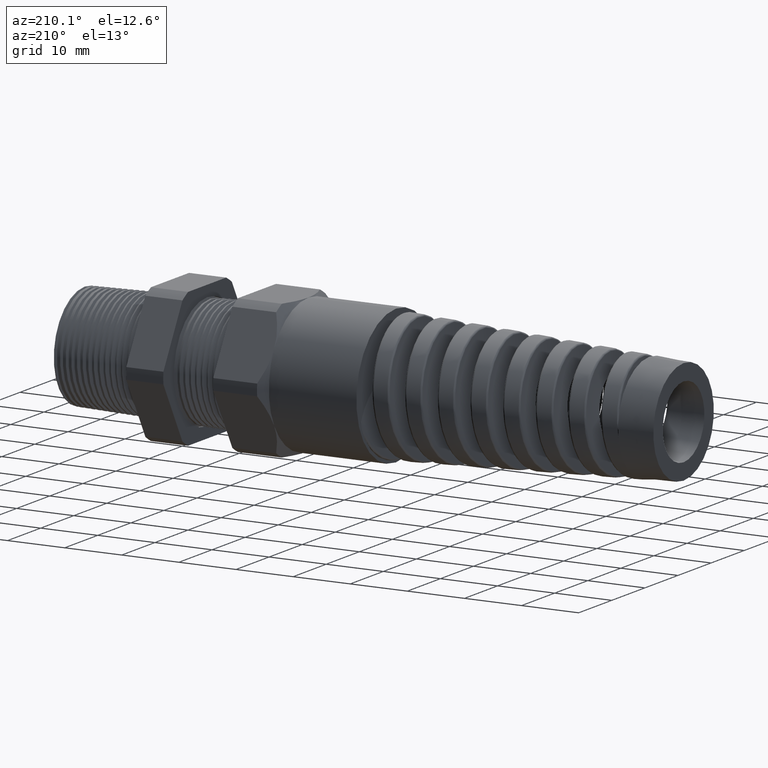
[diagram: clean part render]
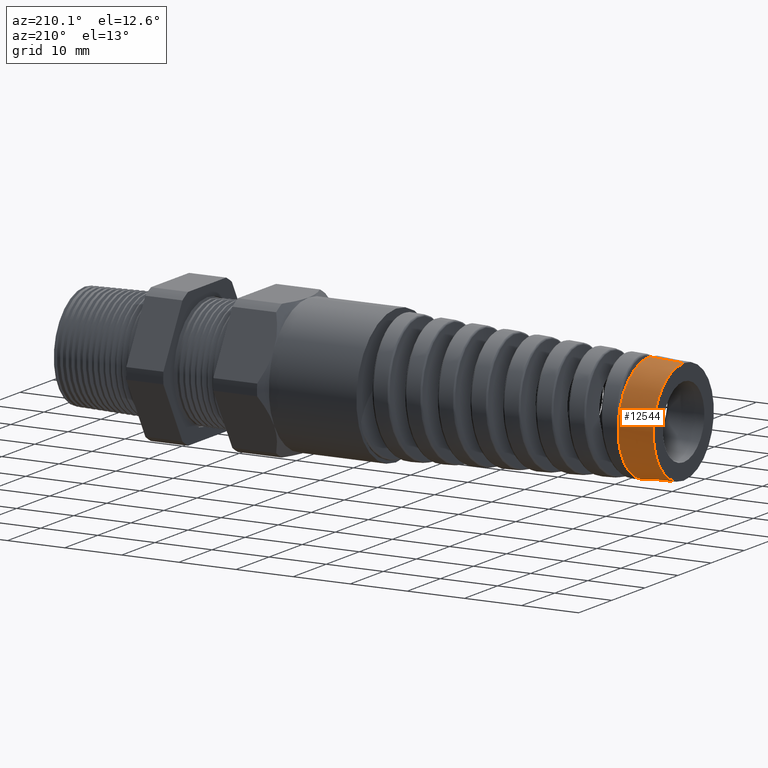
[diagram: same view with one face highlighted and labeled with its STEP entity id]
A machine part, auxiliary view. The second image highlights one B-rep face of the part: STEP entity #12544.
In plain terms, the highlighted conical surface has half-angle 3 deg.
Its self-contained STEP definition (entity closure, byte-faithful):
#402 = DIRECTION ( 'NONE',  ( 0.0000000000000000000, 0.0000000000000000000, -1.000000000000000000 ) ) ;
#404 = DIRECTION ( 'NONE',  ( 1.000000000000000000, 0.0000000000000000000, 0.0000000000000000000 ) ) ;
#406 = CARTESIAN_POINT ( 'NONE',  ( -3.613780000000000200, 0.0000000000000000000, 0.0000000000000000000 ) ) ;
#408 = AXIS2_PLACEMENT_3D ( 'NONE', #406, #404, #402 ) ;
#410 = CIRCLE ( 'NONE', #408, 0.3720344495207378300 ) ;
#556 = CARTESIAN_POINT ( 'NONE',  ( -3.613780000000000200, 0.3677111361746269700, -0.05655220564543374900 ) ) ;
#891 = CARTESIAN_POINT ( 'NONE',  ( -3.613780000000000200, -4.556107977781115500E-017, -0.3720344495207316100 ) ) ;
#5456 = DIRECTION ( 'NONE',  ( 0.9986295347545738300, 0.0000000000000000000, 0.05233595624294395300 ) ) ;
#5457 = VECTOR ( 'NONE', #5456, 39.37007874015748900 ) ;
#5458 = CARTESIAN_POINT ( 'NONE',  ( -3.613780000000000200, 0.0000000000000000000, 0.3720344495207316100 ) ) ;
#5459 = LINE ( 'NONE', #5458, #5457 ) ;
#5460 = CARTESIAN_POINT ( 'NONE',  ( -3.613780000000000200, 0.0000000000000000000, 0.3720344495207316100 ) ) ;
#5548 = DIRECTION ( 'NONE',  ( 0.9986295347545738300, -6.409306129323724800E-018, -0.05233595624294395300 ) ) ;
#5549 = VECTOR ( 'NONE', #5548, 39.37007874015748900 ) ;
#5550 = CARTESIAN_POINT ( 'NONE',  ( -3.613780000000000200, -4.556107977781115500E-017, -0.3720344495207316100 ) ) ;
#5551 = LINE ( 'NONE', #5550, #5549 ) ;
#5552 = CARTESIAN_POINT ( 'NONE',  ( -3.850000472440945600, 0.0000000000000000000, 0.3596546591389108700 ) ) ;
#5553 = CARTESIAN_POINT ( 'NONE',  ( -3.850000472440945600, -4.480303624455055900E-017, -0.3596546591389108700 ) ) ;
#6191 = EDGE_CURVE ( 'NONE', #6283, #6218, #410, .T. ) ;
#6218 = VERTEX_POINT ( 'NONE', #556 ) ;
#6283 = VERTEX_POINT ( 'NONE', #891 ) ;
#6721 = DIRECTION ( 'NONE',  ( 0.0000000000000000000, 0.0000000000000000000, 1.000000000000000000 ) ) ;
#6722 = DIRECTION ( 'NONE',  ( -1.000000000000000000, 0.0000000000000000000, 0.0000000000000000000 ) ) ;
#6723 = AXIS2_PLACEMENT_3D ( 'NONE', #6729, #6722, #6721 ) ;
#6724 = CIRCLE ( 'NONE', #6723, 0.3720344495207316100 ) ;
#6729 = CARTESIAN_POINT ( 'NONE',  ( -3.613780000000000200, 0.0000000000000000000, 0.0000000000000000000 ) ) ;
#7225 = DIRECTION ( 'NONE',  ( 0.0000000000000000000, 0.0000000000000000000, 1.000000000000000000 ) ) ;
#7226 = DIRECTION ( 'NONE',  ( -1.000000000000000000, 0.0000000000000000000, 0.0000000000000000000 ) ) ;
#7227 = CARTESIAN_POINT ( 'NONE',  ( -3.850000472440945600, 0.0000000000000000000, 0.0000000000000000000 ) ) ;
#7228 = AXIS2_PLACEMENT_3D ( 'NONE', #7227, #7226, #7225 ) ;
#7229 = CIRCLE ( 'NONE', #7228, 0.3596546591389108700 ) ;
#7247 = DIRECTION ( 'NONE',  ( 0.0000000000000000000, 0.0000000000000000000, 1.000000000000000000 ) ) ;
#7248 = DIRECTION ( 'NONE',  ( 1.000000000000000000, 0.0000000000000000000, 0.0000000000000000000 ) ) ;
#7249 = CARTESIAN_POINT ( 'NONE',  ( -3.613780000000000200, 0.0000000000000000000, 0.0000000000000000000 ) ) ;
#7250 = AXIS2_PLACEMENT_3D ( 'NONE', #7249, #7248, #7247 ) ;
#7252 = CONICAL_SURFACE ( 'NONE', #7250, 0.3720344495207316100, 0.05235987755983000100 ) ;
#7253 = FACE_OUTER_BOUND ( 'NONE', #12546, .T. ) ;
#12504 = ORIENTED_EDGE ( 'NONE', *, *, #14198, .T. ) ;
#12506 = ORIENTED_EDGE ( 'NONE', *, *, #12507, .T. ) ;
#12507 = EDGE_CURVE ( 'NONE', #14196, #6218, #6724, .T. ) ;
#12509 = ORIENTED_EDGE ( 'NONE', *, *, #6191, .F. ) ;
#12544 = ADVANCED_FACE ( 'NONE', ( #7253 ), #7252, .T. ) ;
#12546 = EDGE_LOOP ( 'NONE', ( #12548, #12550, #12504, #12506, #12509 ) ) ;
#12548 = ORIENTED_EDGE ( 'NONE', *, *, #14220, .F. ) ;
#12550 = ORIENTED_EDGE ( 'NONE', *, *, #12565, .F. ) ;
#12565 = EDGE_CURVE ( 'NONE', #14218, #14217, #7229, .T. ) ;
#14196 = VERTEX_POINT ( 'NONE', #5460 ) ;
#14198 = EDGE_CURVE ( 'NONE', #14218, #14196, #5459, .T. ) ;
#14217 = VERTEX_POINT ( 'NONE', #5553 ) ;
#14218 = VERTEX_POINT ( 'NONE', #5552 ) ;
#14220 = EDGE_CURVE ( 'NONE', #14217, #6283, #5551, .T. ) ;